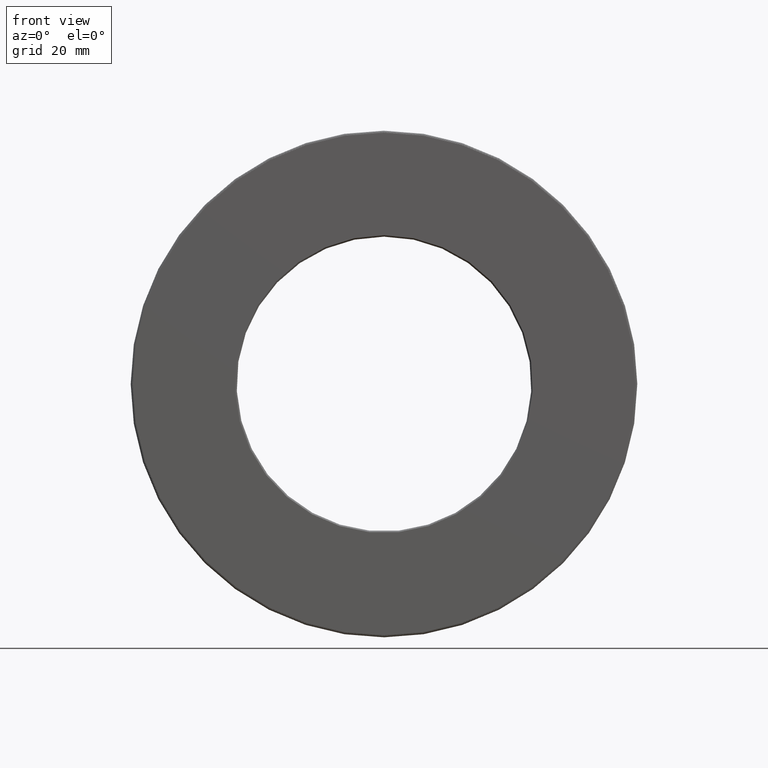
[diagram: clean part render]
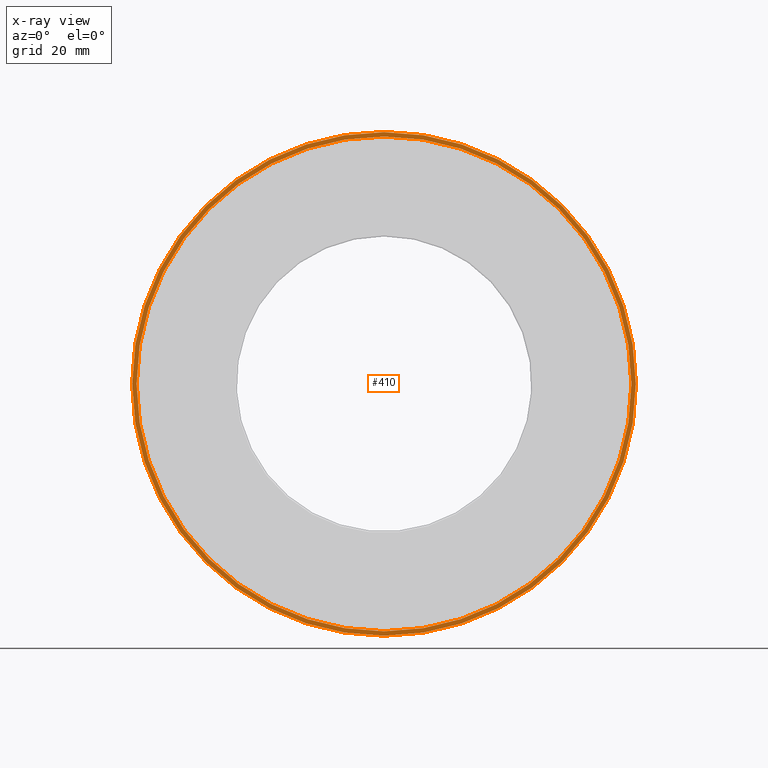
[diagram: x-ray — body ghosted, one internal face saturated and labeled with its STEP entity id]
A machine part, front view, then the same camera in x-ray: the body is ghosted and one INTERNAL B-rep face — a face not visible from any outside direction — is saturated and labeled: STEP entity #410.
In plain terms, the highlighted planar face has unit normal (-0, 1, 0).
Its self-contained STEP definition (entity closure, byte-faithful):
#7 = DIRECTION ( 'NONE',  ( 0.0000000000000000000, 0.0000000000000000000, 1.000000000000000000 ) ) ;
#11 = VERTEX_POINT ( 'NONE', #377 ) ;
#58 = EDGE_LOOP ( 'NONE', ( #229 ) ) ;
#63 = EDGE_LOOP ( 'NONE', ( #471 ) ) ;
#65 = PLANE ( 'NONE',  #597 ) ;
#104 = CARTESIAN_POINT ( 'NONE',  ( 0.0000000000000000000, 1.964999999999999200, 0.0000000000000000000 ) ) ;
#108 = DIRECTION ( 'NONE',  ( 0.0000000000000000000, 0.0000000000000000000, 1.000000000000000000 ) ) ;
#125 = DIRECTION ( 'NONE',  ( -0.0000000000000000000, 1.000000000000000000, 0.0000000000000000000 ) ) ;
#208 = FACE_BOUND ( 'NONE', #63, .T. ) ;
#215 = VERTEX_POINT ( 'NONE', #374 ) ;
#229 = ORIENTED_EDGE ( 'NONE', *, *, #524, .F. ) ;
#270 = EDGE_CURVE ( 'NONE', #11, #11, #307, .T. ) ;
#307 = CIRCLE ( 'NONE', #399, 3.357499999999999900 ) ;
#317 = DIRECTION ( 'NONE',  ( 0.0000000000000000000, 0.0000000000000000000, 1.000000000000000000 ) ) ;
#332 = DIRECTION ( 'NONE',  ( -0.0000000000000000000, 1.000000000000000000, -0.0000000000000000000 ) ) ;
#337 = DIRECTION ( 'NONE',  ( -0.0000000000000000000, 1.000000000000000000, -0.0000000000000000000 ) ) ;
#374 = CARTESIAN_POINT ( 'NONE',  ( 0.0000000000000000000, 1.964999999999999200, 3.417500000000000400 ) ) ;
#377 = CARTESIAN_POINT ( 'NONE',  ( 0.0000000000000000000, 1.964999999999999200, 3.357499999999999900 ) ) ;
#399 = AXIS2_PLACEMENT_3D ( 'NONE', #104, #337, #108 ) ;
#405 = CARTESIAN_POINT ( 'NONE',  ( 0.0000000000000000000, 1.964999999999999200, 0.0000000000000000000 ) ) ;
#410 = ADVANCED_FACE ( 'NONE', ( #503, #208 ), #65, .F. ) ;
#446 = AXIS2_PLACEMENT_3D ( 'NONE', #518, #332, #7 ) ;
#469 = CIRCLE ( 'NONE', #446, 3.417500000000000400 ) ;
#471 = ORIENTED_EDGE ( 'NONE', *, *, #270, .T. ) ;
#503 = FACE_OUTER_BOUND ( 'NONE', #58, .T. ) ;
#518 = CARTESIAN_POINT ( 'NONE',  ( 0.0000000000000000000, 1.964999999999999200, 0.0000000000000000000 ) ) ;
#524 = EDGE_CURVE ( 'NONE', #215, #215, #469, .T. ) ;
#597 = AXIS2_PLACEMENT_3D ( 'NONE', #405, #125, #317 ) ;